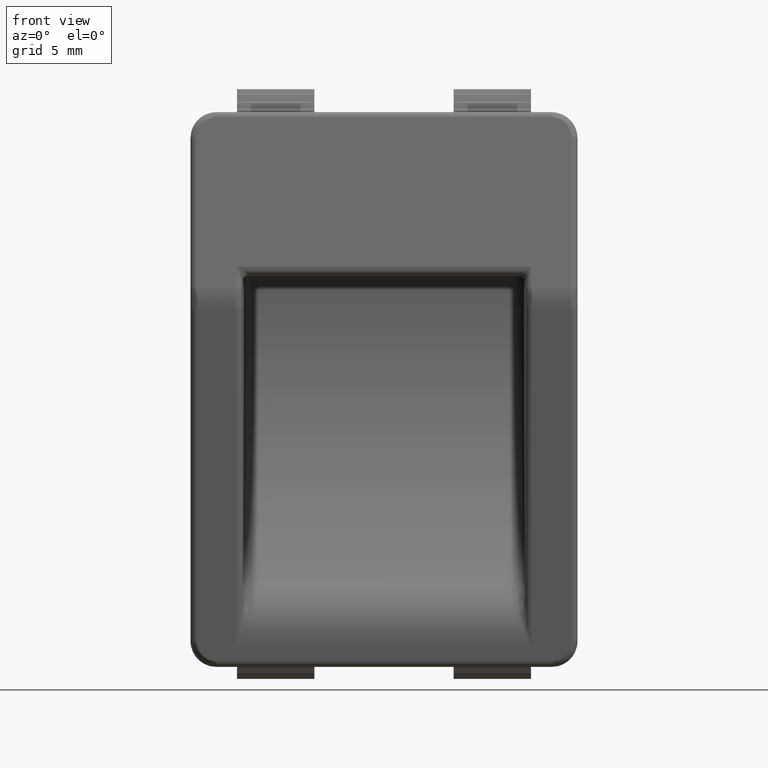
[diagram: clean part render]
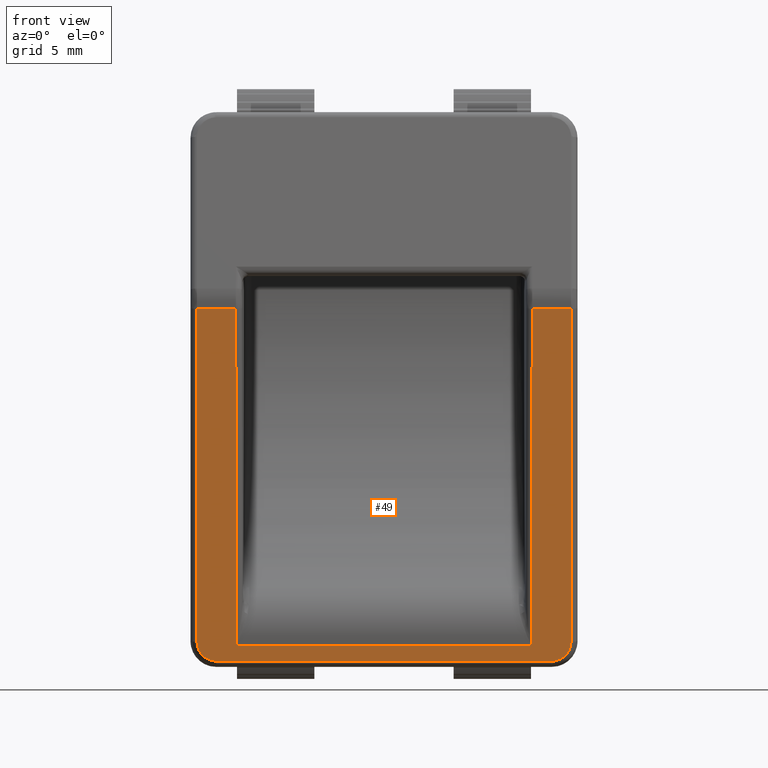
[diagram: same view with one face highlighted and labeled with its STEP entity id]
A machine part, front view. The second image highlights one B-rep face of the part: STEP entity #49.
In plain terms, the highlighted planar face has unit normal (0, -0.9943, -0.1065).
Its self-contained STEP definition (entity closure, byte-faithful):
#49=ADVANCED_FACE('',(#339),#338,.T.);
#338=PLANE('',#2484);
#339=FACE_OUTER_BOUND('',#2485,.T.);
#2481=CARTESIAN_POINT('',(-1.74000000000E+001,-2.64267813371E-001,2.19910944311E+000));
#2482=DIRECTION('',(0.00000000000E+000,-9.94307925553E-001,-1.06544587766E-001));
#2483=DIRECTION('',(0.00000000000E+000,1.06544587766E-001,-9.94307925553E-001));
#2484=AXIS2_PLACEMENT_3D('',#2481,#2482,#2483);
#2485=EDGE_LOOP('',(#4076,#4077,#4078,#4079,#4080,#4081,#4082,#4083,#4084,#4085));
#4076=ORIENTED_EDGE('',*,*,#5185,.F.);
#4077=ORIENTED_EDGE('',*,*,#5186,.T.);
#4078=ORIENTED_EDGE('',*,*,#5187,.T.);
#4079=ORIENTED_EDGE('',*,*,#5188,.T.);
#4080=ORIENTED_EDGE('',*,*,#5148,.F.);
#4081=ORIENTED_EDGE('',*,*,#5189,.F.);
#4082=ORIENTED_EDGE('',*,*,#5190,.T.);
#4083=ORIENTED_EDGE('',*,*,#5191,.F.);
#4084=ORIENTED_EDGE('',*,*,#5192,.T.);
#4085=ORIENTED_EDGE('',*,*,#5193,.T.);
#5148=EDGE_CURVE('',#5747,#5732,#5754,.T.);
#5185=EDGE_CURVE('',#6007,#5823,#6008,.T.);
#5186=EDGE_CURVE('',#6007,#6014,#6015,.T.);
#5187=EDGE_CURVE('',#6014,#6021,#6022,.T.);
#5188=EDGE_CURVE('',#6021,#5732,#6028,.T.);
#5189=EDGE_CURVE('',#6034,#5747,#6035,.T.);
#5190=EDGE_CURVE('',#6034,#6041,#6042,.T.);
#5191=EDGE_CURVE('',#6048,#6041,#6049,.T.);
#5192=EDGE_CURVE('',#6048,#6055,#6056,.T.);
#5193=EDGE_CURVE('',#6055,#5823,#6062,.T.);
#5732=VERTEX_POINT('',#9436);
#5747=VERTEX_POINT('',#9446);
#5754=(BOUNDED_CURVE() B_SPLINE_CURVE(2,(#9451,#9452,#9453),.UNSPECIFIED.,.F.,.F.) B_SPLINE_CURVE_WITH_KNOTS((3,3),(-1.57079632679E+000,-3.43902684108E-012),.UNSPECIFIED.) CURVE() GEOMETRIC_REPRESENTATION_ITEM() RATIONAL_B_SPLINE_CURVE((1.00000000000E+000,7.07106781188E-001,1.00000000000E+000)) REPRESENTATION_ITEM('') );
#5823=VERTEX_POINT('',#9504);
#6007=VERTEX_POINT('',#9626);
#6008=LINE('',#9627,#9628);
#6014=VERTEX_POINT('',#9630);
#6015=LINE('',#9631,#9632);
#6021=VERTEX_POINT('',#9634);
#6022=(BOUNDED_CURVE() B_SPLINE_CURVE(2,(#9635,#9636,#9637),.UNSPECIFIED.,.F.,.F.) B_SPLINE_CURVE_WITH_KNOTS((3,3),(-1.57079632679E+000,-3.43902684108E-012),.UNSPECIFIED.) CURVE() GEOMETRIC_REPRESENTATION_ITEM() RATIONAL_B_SPLINE_CURVE((1.00000000000E+000,7.07106781188E-001,1.00000000000E+000)) REPRESENTATION_ITEM('') );
#6028=LINE('',#9638,#9639);
#6034=VERTEX_POINT('',#9641);
#6035=LINE('',#9642,#9643);
#6041=VERTEX_POINT('',#9645);
#6042=LINE('',#9646,#9647);
#6048=VERTEX_POINT('',#9649);
#6049=(BOUNDED_CURVE() B_SPLINE_CURVE(1,(#9650,#9651),.UNSPECIFIED.,.F.,.F.) B_SPLINE_CURVE_WITH_KNOTS((2,2),(0.00000000000E+000,1.00000000000E+000),.UNSPECIFIED.) CURVE() GEOMETRIC_REPRESENTATION_ITEM() RATIONAL_B_SPLINE_CURVE((1.00000000000E+000,1.00000000000E+000)) REPRESENTATION_ITEM('') );
#6055=VERTEX_POINT('',#9652);
#6056=(BOUNDED_CURVE() B_SPLINE_CURVE(1,(#9653,#9654),.UNSPECIFIED.,.F.,.F.) B_SPLINE_CURVE_WITH_KNOTS((2,2),(0.00000000000E+000,1.00000000000E+000),.UNSPECIFIED.) CURVE() GEOMETRIC_REPRESENTATION_ITEM() RATIONAL_B_SPLINE_CURVE((1.00000000000E+000,1.00000000000E+000)) REPRESENTATION_ITEM('') );
#6062=(BOUNDED_CURVE() B_SPLINE_CURVE(1,(#9655,#9656),.UNSPECIFIED.,.F.,.F.) B_SPLINE_CURVE_WITH_KNOTS((2,2),(0.00000000000E+000,1.00000000000E+000),.UNSPECIFIED.) CURVE() GEOMETRIC_REPRESENTATION_ITEM() RATIONAL_B_SPLINE_CURVE((1.00000000000E+000,1.00000000000E+000)) REPRESENTATION_ITEM('') );
#9436=CARTESIAN_POINT('',(1.30000000000E+001,2.95574222829E+000,-2.78510467582E+001));
#9446=CARTESIAN_POINT('',(1.45000000000E+001,2.79501044939E+000,-2.63510467582E+001));
#9451=CARTESIAN_POINT('',(1.45000000000E+001,2.79501044939E+000,-2.63510467582E+001));
#9452=CARTESIAN_POINT('',(1.45000000000E+001,2.95574222829E+000,-2.78510467582E+001));
#9453=CARTESIAN_POINT('',(1.30000000000E+001,2.95574222829E+000,-2.78510467582E+001));
#9504=CARTESIAN_POINT('',(-1.14909740072E+001,2.84603722345E-002,-5.32722938831E-001));
#9626=CARTESIAN_POINT('',(-1.45000000000E+001,2.84603722345E-002,-5.32722938831E-001));
#9627=CARTESIAN_POINT('',(-1.45000000000E+001,2.84603722345E-002,-5.32722938831E-001));
#9628=VECTOR('',#9629,3.00902599283E+000);
#9629=DIRECTION('',(1.00000000000E+000,0.00000000000E+000,0.00000000000E+000));
#9630=CARTESIAN_POINT('',(-1.45000000000E+001,2.79501044939E+000,-2.63510467582E+001));
#9631=CARTESIAN_POINT('',(-1.45000000000E+001,2.84603722345E-002,-5.32722938831E-001));
#9632=VECTOR('',#9633,2.59661249356E+001);
#9633=DIRECTION('',(0.00000000000E+000,1.06544587766E-001,-9.94307925553E-001));
#9634=CARTESIAN_POINT('',(-1.30000000000E+001,2.95574222829E+000,-2.78510467582E+001));
#9635=CARTESIAN_POINT('',(-1.45000000000E+001,2.79501044939E+000,-2.63510467582E+001));
#9636=CARTESIAN_POINT('',(-1.45000000000E+001,2.95574222829E+000,-2.78510467582E+001));
#9637=CARTESIAN_POINT('',(-1.30000000000E+001,2.95574222829E+000,-2.78510467582E+001));
#9638=CARTESIAN_POINT('',(-1.30000000000E+001,2.95574222829E+000,-2.78510467582E+001));
#9639=VECTOR('',#9640,2.60000000000E+001);
#9640=DIRECTION('',(1.00000000000E+000,0.00000000000E+000,0.00000000000E+000));
#9641=CARTESIAN_POINT('',(1.45000000000E+001,2.84603722345E-002,-5.32722938831E-001));
#9642=CARTESIAN_POINT('',(1.45000000000E+001,2.84603722345E-002,-5.32722938831E-001));
#9643=VECTOR('',#9644,2.59661249356E+001);
#9644=DIRECTION('',(0.00000000000E+000,1.06544587766E-001,-9.94307925553E-001));
#9645=CARTESIAN_POINT('',(1.14909740072E+001,2.84603722345E-002,-5.32722938831E-001));
#9646=CARTESIAN_POINT('',(1.45000000000E+001,2.84603722345E-002,-5.32722938831E-001));
#9647=VECTOR('',#9648,3.00902599283E+000);
#9648=DIRECTION('',(-1.00000000000E+000,0.00000000000E+000,0.00000000000E+000));
#9649=CARTESIAN_POINT('',(1.14420985061E+001,2.82853595599E+000,-2.66639174317E+001));
#9650=CARTESIAN_POINT('',(1.14420985061E+001,2.82853595599E+000,-2.66639174317E+001));
#9651=CARTESIAN_POINT('',(1.14909740072E+001,2.84603722345E-002,-5.32722938831E-001));
#9652=CARTESIAN_POINT('',(-1.14420985061E+001,2.82853595599E+000,-2.66639174317E+001));
#9653=CARTESIAN_POINT('',(1.14420985061E+001,2.82853595599E+000,-2.66639174317E+001));
#9654=CARTESIAN_POINT('',(-1.14420985061E+001,2.82853595599E+000,-2.66639174317E+001));
#9655=CARTESIAN_POINT('',(-1.14420985061E+001,2.82853595599E+000,-2.66639174317E+001));
#9656=CARTESIAN_POINT('',(-1.14909740072E+001,2.84603722345E-002,-5.32722938831E-001));